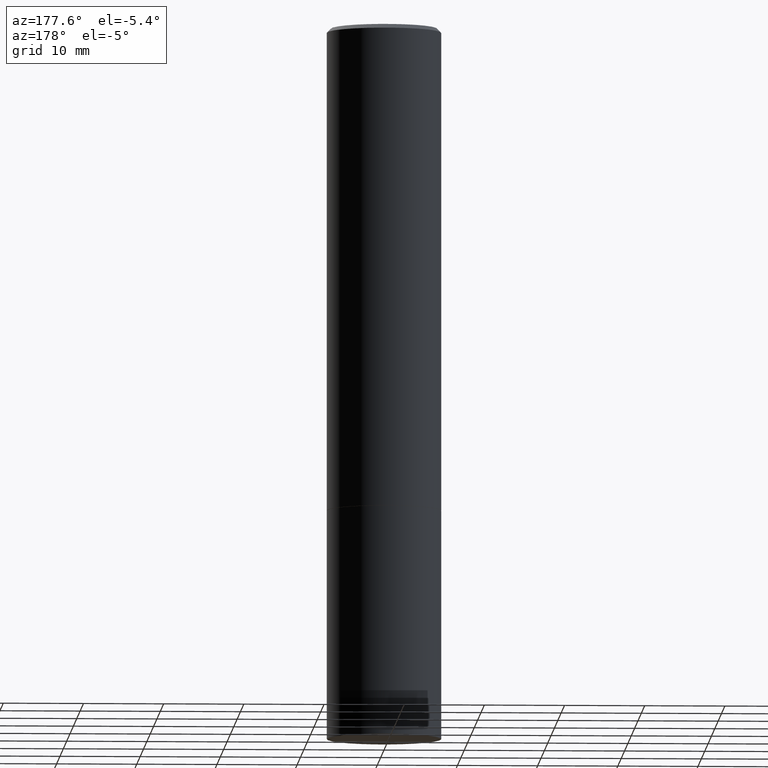
[diagram: clean part render]
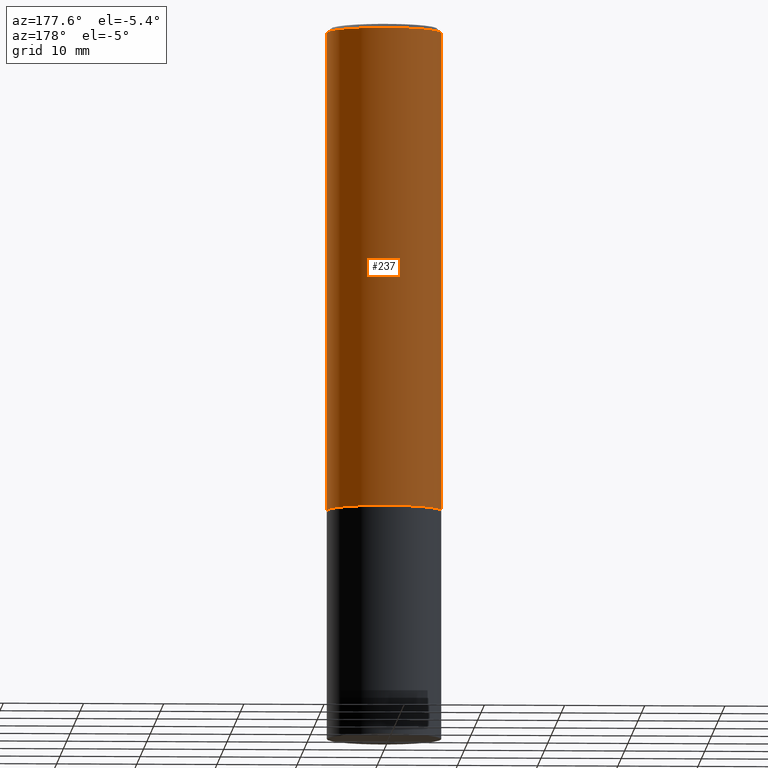
[diagram: same view with one face highlighted and labeled with its STEP entity id]
A machine part, auxiliary view. The second image highlights one B-rep face of the part: STEP entity #237.
In plain terms, the highlighted cylindrical surface (partial cylindrical patch) has radius 7.1437 mm, axis along (-0, 0, 1).
Its self-contained STEP definition (entity closure, byte-faithful):
#5 = LINE ( 'NONE', #100, #162 ) ;
#23 = CARTESIAN_POINT ( 'NONE',  ( 4.890937612370292426E-31, -6.982962677686317493E-17, -0.02000000000000007674 ) ) ;
#29 = CARTESIAN_POINT ( 'NONE',  ( -0.2812500000000000555, -2.180901718269960671E-15, -2.373999999999999666 ) ) ;
#32 = VECTOR ( 'NONE', #236, 39.37007874015748143 ) ;
#46 = ORIENTED_EDGE ( 'NONE', *, *, #194, .T. ) ;
#62 = VERTEX_POINT ( 'NONE', #129 ) ;
#63 = DIRECTION ( 'NONE',  ( -2.445468806185136877E-29, 3.491481338843145188E-15, 1.000000000000000000 ) ) ;
#86 = CYLINDRICAL_SURFACE ( 'NONE', #284, 0.2812499999999998890 ) ;
#100 = CARTESIAN_POINT ( 'NONE',  ( -0.2812499999999998890, 1.998401444325280984E-15, -1.383450494134191428E-29 ) ) ;
#115 = DIRECTION ( 'NONE',  ( 1.000000000000000000, -6.982962677686266711E-15, 0.000000000000000000 ) ) ;
#116 = ORIENTED_EDGE ( 'NONE', *, *, #175, .F. ) ;
#121 = CARTESIAN_POINT ( 'NONE',  ( 5.805542945883512693E-29, -8.288776698413627111E-15, -2.373999999999999666 ) ) ;
#129 = CARTESIAN_POINT ( 'NONE',  ( 0.2812499999999997224, -1.999344688650104184E-15, -0.02000000000000007674 ) ) ;
#137 = VERTEX_POINT ( 'NONE', #312 ) ;
#140 = VERTEX_POINT ( 'NONE', #29 ) ;
#149 = EDGE_LOOP ( 'NONE', ( #46, #230, #116, #265 ) ) ;
#162 = VECTOR ( 'NONE', #63, 39.37007874015748143 ) ;
#175 = EDGE_CURVE ( 'NONE', #62, #240, #341, .T. ) ;
#181 = CIRCLE ( 'NONE', #195, 0.2812500000000000555 ) ;
#185 = CARTESIAN_POINT ( 'NONE',  ( 0.000000000000000000, 0.000000000000000000, 0.000000000000000000 ) ) ;
#191 = EDGE_CURVE ( 'NONE', #137, #62, #380, .T. ) ;
#194 = EDGE_CURVE ( 'NONE', #137, #140, #181, .T. ) ;
#195 = AXIS2_PLACEMENT_3D ( 'NONE', #121, #350, #355 ) ;
#212 = DIRECTION ( 'NONE',  ( -2.445468806185136597E-29, 3.491481338843145583E-15, 1.000000000000000000 ) ) ;
#230 = ORIENTED_EDGE ( 'NONE', *, *, #264, .T. ) ;
#236 = DIRECTION ( 'NONE',  ( -2.445468806185136877E-29, 3.491481338843145188E-15, 1.000000000000000000 ) ) ;
#237 = ADVANCED_FACE ( 'NONE', ( #353 ), #86, .T. ) ;
#238 = CARTESIAN_POINT ( 'NONE',  ( 0.2812499999999998890, -1.963958253099261723E-15, 1.371424718192606451E-29 ) ) ;
#240 = VERTEX_POINT ( 'NONE', #252 ) ;
#252 = CARTESIAN_POINT ( 'NONE',  ( -0.2812499999999997224, 1.894128626322397242E-15, -0.02000000000000007674 ) ) ;
#264 = EDGE_CURVE ( 'NONE', #140, #240, #5, .T. ) ;
#265 = ORIENTED_EDGE ( 'NONE', *, *, #191, .F. ) ;
#278 = DIRECTION ( 'NONE',  ( 1.000000000000000000, -6.982962677686266711E-15, 4.876176775795935793E-29 ) ) ;
#280 = AXIS2_PLACEMENT_3D ( 'NONE', #23, #212, #115 ) ;
#284 = AXIS2_PLACEMENT_3D ( 'NONE', #185, #309, #278 ) ;
#309 = DIRECTION ( 'NONE',  ( -2.445468806185136597E-29, 3.491481338843145583E-15, 1.000000000000000000 ) ) ;
#312 = CARTESIAN_POINT ( 'NONE',  ( 0.2812500000000000555, -1.025273495151288883E-14, -2.373999999999999666 ) ) ;
#341 = CIRCLE ( 'NONE', #280, 0.2812499999999997224 ) ;
#350 = DIRECTION ( 'NONE',  ( -2.445468806185136597E-29, 3.491481338843145583E-15, 1.000000000000000000 ) ) ;
#353 = FACE_OUTER_BOUND ( 'NONE', #149, .T. ) ;
#355 = DIRECTION ( 'NONE',  ( 1.000000000000000000, -6.982962677686265133E-15, 0.000000000000000000 ) ) ;
#380 = LINE ( 'NONE', #238, #32 ) ;